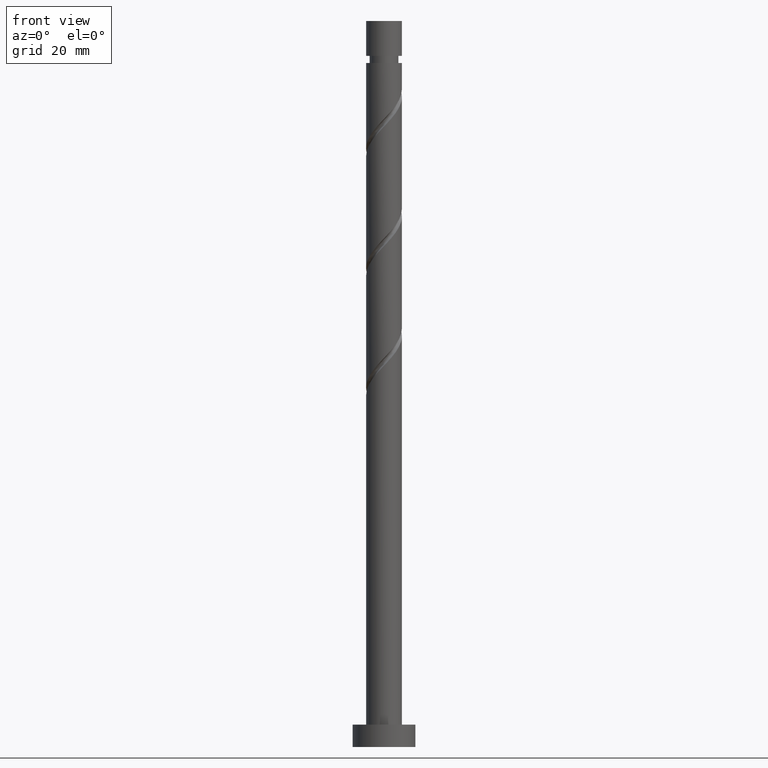
[diagram: clean part render]
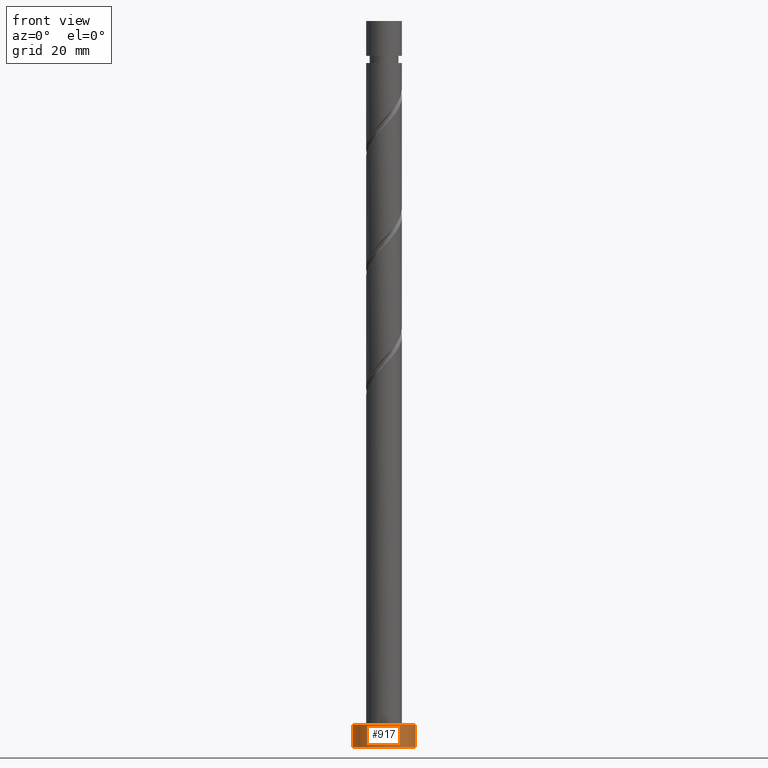
[diagram: same view with one face highlighted and labeled with its STEP entity id]
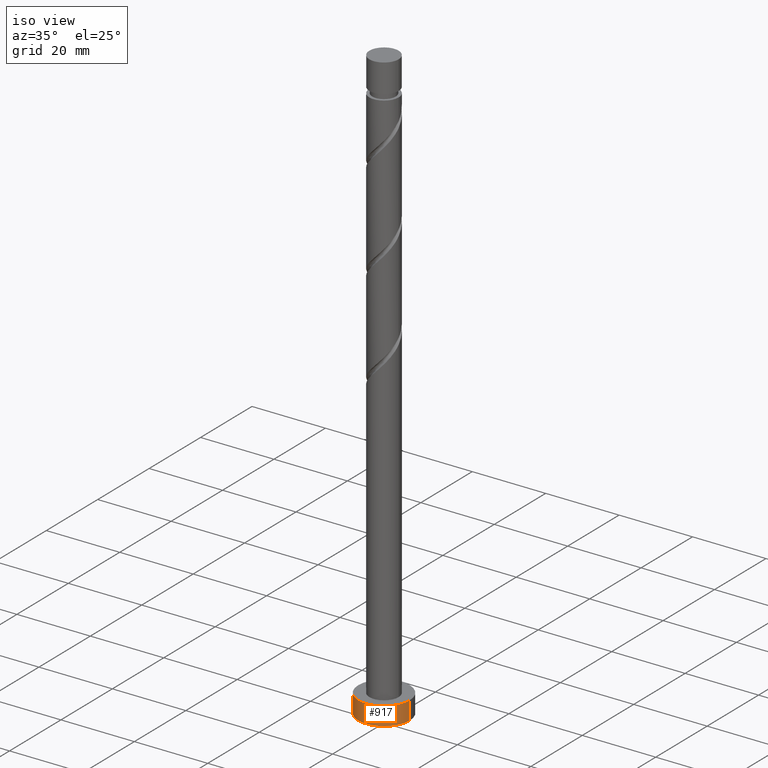
[diagram: same view with one face highlighted and labeled with its STEP entity id]
A machine part, front view. The second image highlights one B-rep face of the part: STEP entity #917.
A second angle (iso view) of the same face is appended — the face is thin or edge-on in the first view.
In plain terms, the highlighted cylindrical surface (edge-blend (fillet) strip) has radius 7 mm, axis along (-0, -0, -1).
Its self-contained STEP definition (entity closure, byte-faithful):
#21 = CARTESIAN_POINT ( 'NONE',  ( 0.000000000000000000, 0.000000000000000000, 0.000000000000000000 ) ) ;
#26 = DIRECTION ( 'NONE',  ( -0.000000000000000000, -0.000000000000000000, -1.000000000000000000 ) ) ;
#65 = EDGE_CURVE ( 'NONE', #557, #755, #681, .T. ) ;
#149 = DIRECTION ( 'NONE',  ( -1.000000000000000000, 0.000000000000000000, 0.000000000000000000 ) ) ;
#188 = CARTESIAN_POINT ( 'NONE',  ( 7.000000000000000000, 8.572527594031473190E-16, 5.000000000000000000 ) ) ;
#224 = CARTESIAN_POINT ( 'NONE',  ( 7.000000000000000000, 8.572527594031473190E-16, 5.000000000000000000 ) ) ;
#285 = DIRECTION ( 'NONE',  ( -0.000000000000000000, -0.000000000000000000, -1.000000000000000000 ) ) ;
#325 = DIRECTION ( 'NONE',  ( -0.000000000000000000, -0.000000000000000000, -1.000000000000000000 ) ) ;
#361 = ORIENTED_EDGE ( 'NONE', *, *, #1441, .T. ) ;
#385 = AXIS2_PLACEMENT_3D ( 'NONE', #1172, #26, #149 ) ;
#395 = EDGE_LOOP ( 'NONE', ( #614, #1033, #361, #1275 ) ) ;
#418 = CIRCLE ( 'NONE', #1490, 7.000000000000000000 ) ;
#421 = EDGE_CURVE ( 'NONE', #1206, #755, #1494, .T. ) ;
#431 = EDGE_CURVE ( 'NONE', #1064, #1206, #418, .T. ) ;
#534 = DIRECTION ( 'NONE',  ( 0.000000000000000000, 0.000000000000000000, 1.000000000000000000 ) ) ;
#557 = VERTEX_POINT ( 'NONE', #1453 ) ;
#564 = CYLINDRICAL_SURFACE ( 'NONE', #385, 7.000000000000000000 ) ;
#602 = DIRECTION ( 'NONE',  ( 1.000000000000000000, 0.000000000000000000, 0.000000000000000000 ) ) ;
#614 = ORIENTED_EDGE ( 'NONE', *, *, #421, .F. ) ;
#681 = CIRCLE ( 'NONE', #1559, 7.000000000000000000 ) ;
#696 = FACE_OUTER_BOUND ( 'NONE', #395, .T. ) ;
#716 = VECTOR ( 'NONE', #325, 1000.000000000000000 ) ;
#750 = VECTOR ( 'NONE', #285, 1000.000000000000000 ) ;
#755 = VERTEX_POINT ( 'NONE', #1121 ) ;
#862 = CARTESIAN_POINT ( 'NONE',  ( 0.000000000000000000, 0.000000000000000000, 5.000000000000000000 ) ) ;
#913 = DIRECTION ( 'NONE',  ( 1.000000000000000000, 0.000000000000000000, 0.000000000000000000 ) ) ;
#917 = ADVANCED_FACE ( 'NONE', ( #696 ), #564, .T. ) ;
#922 = LINE ( 'NONE', #1411, #750 ) ;
#1033 = ORIENTED_EDGE ( 'NONE', *, *, #431, .F. ) ;
#1064 = VERTEX_POINT ( 'NONE', #1543 ) ;
#1121 = CARTESIAN_POINT ( 'NONE',  ( 7.000000000000000000, 8.572527594031473190E-16, 0.000000000000000000 ) ) ;
#1172 = CARTESIAN_POINT ( 'NONE',  ( 0.000000000000000000, 0.000000000000000000, 5.000000000000000000 ) ) ;
#1206 = VERTEX_POINT ( 'NONE', #224 ) ;
#1275 = ORIENTED_EDGE ( 'NONE', *, *, #65, .T. ) ;
#1411 = CARTESIAN_POINT ( 'NONE',  ( -7.000000000000000000, 0.000000000000000000, 5.000000000000000000 ) ) ;
#1441 = EDGE_CURVE ( 'NONE', #1064, #557, #922, .T. ) ;
#1453 = CARTESIAN_POINT ( 'NONE',  ( -7.000000000000000000, 0.000000000000000000, 0.000000000000000000 ) ) ;
#1490 = AXIS2_PLACEMENT_3D ( 'NONE', #862, #1602, #602 ) ;
#1494 = LINE ( 'NONE', #188, #716 ) ;
#1543 = CARTESIAN_POINT ( 'NONE',  ( -7.000000000000000000, 0.000000000000000000, 5.000000000000000000 ) ) ;
#1559 = AXIS2_PLACEMENT_3D ( 'NONE', #21, #534, #913 ) ;
#1602 = DIRECTION ( 'NONE',  ( 0.000000000000000000, 0.000000000000000000, 1.000000000000000000 ) ) ;